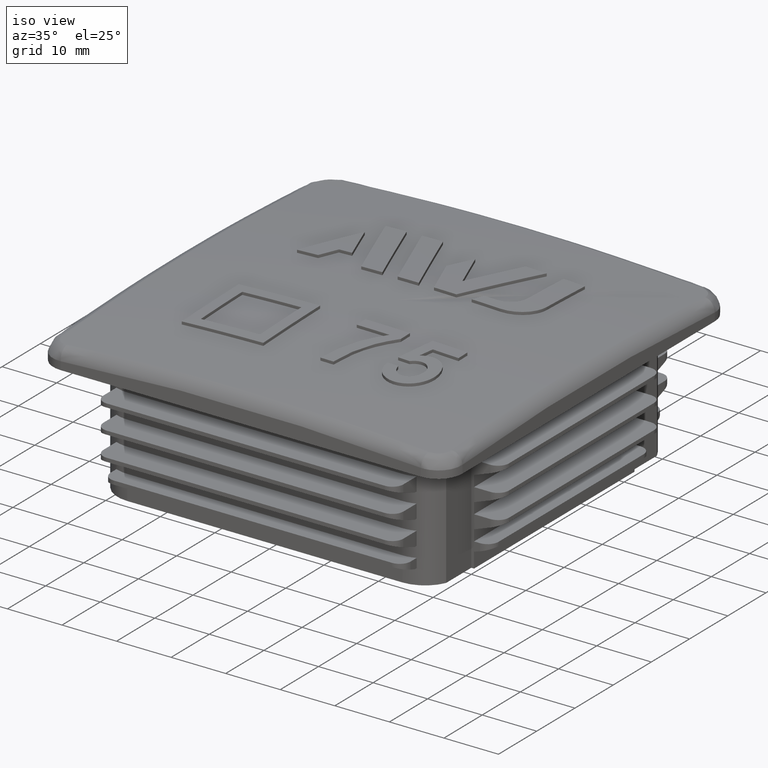
[diagram: clean part render]
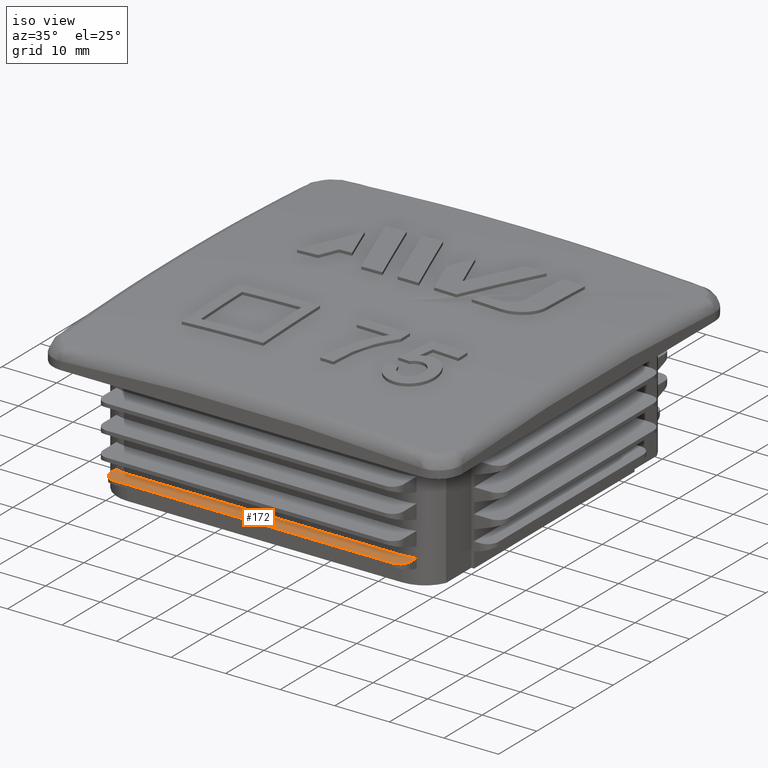
[diagram: same view with one face highlighted and labeled with its STEP entity id]
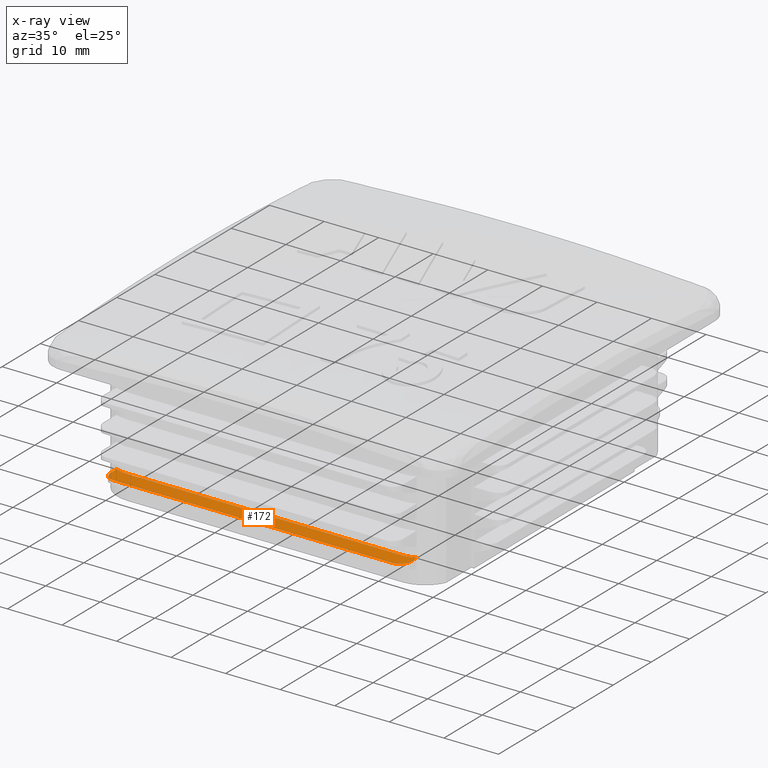
[diagram: x-ray of the same camera — body ghosted, the highlighted face saturated]
A machine part, iso view. The second image highlights one B-rep face of the part: STEP entity #172.
The next image is the same camera in x-ray: the body ghosted, the highlighted face saturated — about 0% of this face is hidden behind the body in this view.
In plain terms, the highlighted planar face has unit normal (0, 0, 1).
Its self-contained STEP definition (entity closure, byte-faithful):
#172 = ADVANCED_FACE( '', ( #532 ), #533, .T. );
#532 = FACE_OUTER_BOUND( '', #3052, .T. );
#533 = PLANE( '', #3053 );
#3052 = EDGE_LOOP( '', ( #4350, #4351, #4352, #4353, #4354, #4355, #4356, #4357 ) );
#3053 = AXIS2_PLACEMENT_3D( '', #4358, #4359, #4360 );
#4350 = ORIENTED_EDGE( '', *, *, #5920, .T. );
#4351 = ORIENTED_EDGE( '', *, *, #5841, .T. );
#4352 = ORIENTED_EDGE( '', *, *, #5837, .F. );
#4353 = ORIENTED_EDGE( '', *, *, #5835, .T. );
#4354 = ORIENTED_EDGE( '', *, *, #5833, .F. );
#4355 = ORIENTED_EDGE( '', *, *, #5831, .T. );
#4356 = ORIENTED_EDGE( '', *, *, #5829, .T. );
#4357 = ORIENTED_EDGE( '', *, *, #5818, .T. );
#4358 = CARTESIAN_POINT( '', ( 27.5000000000000, -34.3000000000000, 4.50000000000000 ) );
#4359 = DIRECTION( '', ( 1.02385407644591E-031, 6.12303176911189E-017, 1.00000000000000 ) );
#4360 = DIRECTION( '', ( -1.83690953073357E-016, -1.00000000000000, 6.12303176911189E-017 ) );
#5818 = EDGE_CURVE( '', #6712, #6710, #6713, .F. );
#5829 = EDGE_CURVE( '', #6731, #6712, #6732, .T. );
#5831 = EDGE_CURVE( '', #6734, #6731, #6735, .T. );
#5833 = EDGE_CURVE( '', #6734, #6737, #6738, .T. );
#5835 = EDGE_CURVE( '', #6740, #6737, #6741, .T. );
#5837 = EDGE_CURVE( '', #6740, #6743, #6744, .T. );
#5841 = EDGE_CURVE( '', #6749, #6743, #6750, .F. );
#5920 = EDGE_CURVE( '', #6710, #6749, #6877, .T. );
#6710 = VERTEX_POINT( '', #9474 );
#6712 = VERTEX_POINT( '', #9477 );
#6713 = CIRCLE( '', #9478, 6.00000000000000 );
#6731 = VERTEX_POINT( '', #9503 );
#6732 = LINE( '', #9504, #9505 );
#6734 = VERTEX_POINT( '', #9508 );
#6735 = CIRCLE( '', #9509, 2.00000000000000 );
#6737 = VERTEX_POINT( '', #9512 );
#6738 = LINE( '', #9513, #9514 );
#6740 = VERTEX_POINT( '', #9517 );
#6741 = CIRCLE( '', #9518, 2.00000000000000 );
#6743 = VERTEX_POINT( '', #9521 );
#6744 = LINE( '', #9522, #9523 );
#6749 = VERTEX_POINT( '', #9530 );
#6750 = CIRCLE( '', #9531, 6.00000000000000 );
#6877 = LINE( '', #9714, #9715 );
#9474 = CARTESIAN_POINT( '', ( 25.2000000000000, -31.2000000000000, 4.50000000000000 ) );
#9477 = CARTESIAN_POINT( '', ( 27.5000000000000, -30.7416604009990, 4.50000000000000 ) );
#9478 = AXIS2_PLACEMENT_3D( '', #10832, #10833, #10834 );
#9503 = CARTESIAN_POINT( '', ( 27.5000000000000, -32.3000000000000, 4.50000000000000 ) );
#9504 = CARTESIAN_POINT( '', ( 27.5000000000000, -34.3000000000000, 4.50000000000000 ) );
#9505 = VECTOR( '', #10851, 1000.00000000000 );
#9508 = CARTESIAN_POINT( '', ( 25.5000000000000, -34.3000000000000, 4.50000000000000 ) );
#9509 = AXIS2_PLACEMENT_3D( '', #10853, #10854, #10855 );
#9512 = CARTESIAN_POINT( '', ( -25.5000000000000, -34.3000000000000, 4.50000000000000 ) );
#9513 = CARTESIAN_POINT( '', ( 27.5000000000000, -34.3000000000000, 4.50000000000000 ) );
#9514 = VECTOR( '', #10857, 1000.00000000000 );
#9517 = CARTESIAN_POINT( '', ( -27.5000000000000, -32.3000000000000, 4.50000000000000 ) );
#9518 = AXIS2_PLACEMENT_3D( '', #10859, #10860, #10861 );
#9521 = CARTESIAN_POINT( '', ( -27.5000000000000, -30.7416604009990, 4.50000000000000 ) );
#9522 = CARTESIAN_POINT( '', ( -27.5000000000000, -34.3000000000000, 4.50000000000000 ) );
#9523 = VECTOR( '', #10863, 1000.00000000000 );
#9530 = CARTESIAN_POINT( '', ( -25.2000000000000, -31.2000000000000, 4.50000000000000 ) );
#9531 = AXIS2_PLACEMENT_3D( '', #10869, #10870, #10871 );
#9714 = CARTESIAN_POINT( '', ( -25.2000000000000, -31.2000000000000, 4.50000000000000 ) );
#9715 = VECTOR( '', #10994, 1000.00000000000 );
#10832 = CARTESIAN_POINT( '', ( 25.2000000000000, -25.2000000000000, 4.50000000000000 ) );
#10833 = DIRECTION( '', ( 1.02385407644591E-031, 6.12303176911189E-017, 1.00000000000000 ) );
#10834 = DIRECTION( '', ( 0.000000000000000, -1.00000000000000, 6.12303176911189E-017 ) );
#10851 = DIRECTION( '', ( 1.83690953073357E-016, 1.00000000000000, -6.12303176911189E-017 ) );
#10853 = CARTESIAN_POINT( '', ( 25.5000000000000, -32.3000000000000, 4.50000000000000 ) );
#10854 = DIRECTION( '', ( 1.02385407644591E-031, 6.12303176911189E-017, 1.00000000000000 ) );
#10855 = DIRECTION( '', ( 1.22460635382238E-016, 1.00000000000000, -6.12303176911189E-017 ) );
#10857 = DIRECTION( '', ( -1.00000000000000, 1.83690953073357E-016, 9.11379522309250E-032 ) );
#10859 = CARTESIAN_POINT( '', ( -25.5000000000000, -32.3000000000000, 4.50000000000000 ) );
#10860 = DIRECTION( '', ( 1.02385407644591E-031, 6.12303176911189E-017, 1.00000000000000 ) );
#10861 = DIRECTION( '', ( 1.22460635382238E-016, 1.00000000000000, -6.12303176911189E-017 ) );
#10863 = DIRECTION( '', ( 1.83690953073357E-016, 1.00000000000000, -6.12303176911189E-017 ) );
#10869 = CARTESIAN_POINT( '', ( -25.2000000000000, -25.2000000000000, 4.50000000000000 ) );
#10870 = DIRECTION( '', ( 1.02385407644591E-031, 6.12303176911189E-017, 1.00000000000000 ) );
#10871 = DIRECTION( '', ( 0.000000000000000, -1.00000000000000, 6.12303176911189E-017 ) );
#10994 = DIRECTION( '', ( -1.00000000000000, 0.000000000000000, 1.02385407644591E-031 ) );